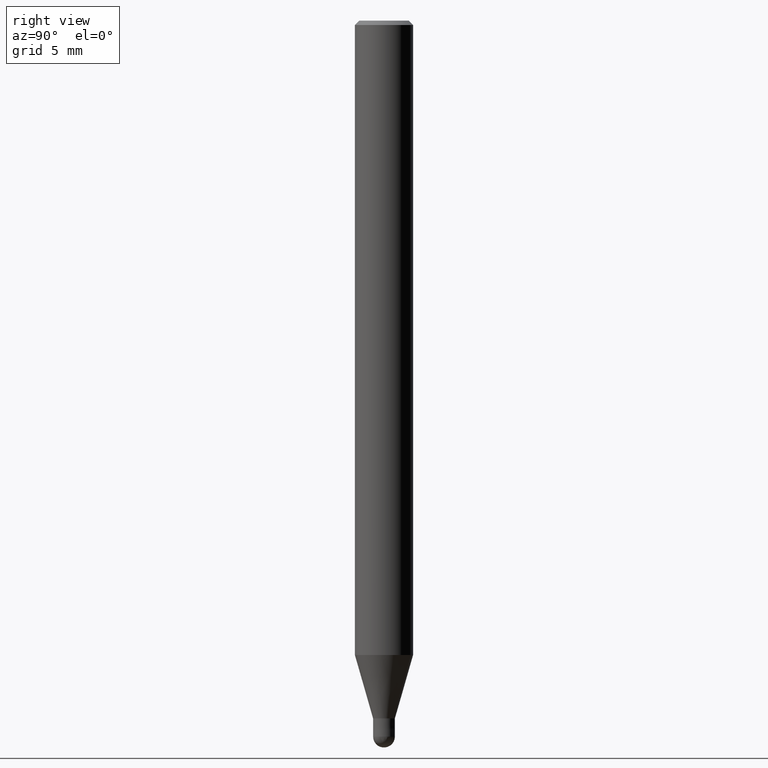
[diagram: clean part render]
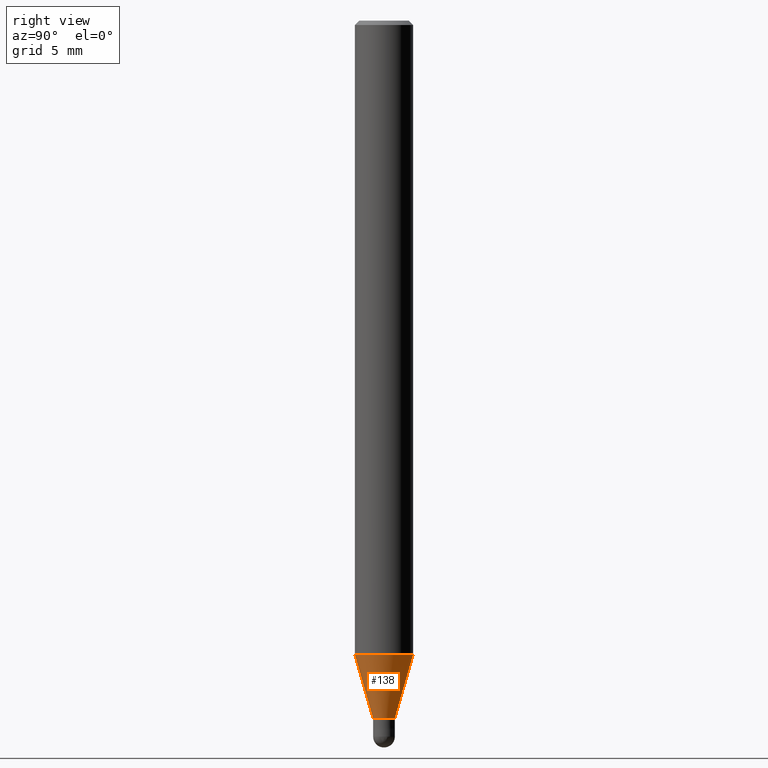
[diagram: same view with one face highlighted and labeled with its STEP entity id]
A machine part, right view. The second image highlights one B-rep face of the part: STEP entity #138.
In plain terms, the highlighted conical surface has half-angle 16.001 deg.
Its self-contained STEP definition (entity closure, byte-faithful):
#94=VERTEX_POINT('',#222);
#100=VERTEX_POINT('',#229);
#112=EDGE_CURVE('',#100,#170,#241,.T.);
#120=EDGE_CURVE('',#100,#186,#249,.T.);
#138=ADVANCED_FACE('',(#271),#272,.T.);
#160=EDGE_CURVE('',#170,#94,#298,.T.);
#170=VERTEX_POINT('',#309);
#186=VERTEX_POINT('',#326);
#190=EDGE_CURVE('',#94,#186,#330,.T.);
#222=CARTESIAN_POINT('',(9.18393535049092E-017,-0.74995,-48.0));
#229=CARTESIAN_POINT('',(0.0,1.99995,-43.641));
#241=LINE('',#382,#383);
#249=CIRCLE('',#394,1.99995);
#271=FACE_OUTER_BOUND('',#422,.T.);
#272=CONICAL_SURFACE('',#423,1.37495,0.279268973819818);
#298=CIRCLE('',#452,0.74995);
#309=CARTESIAN_POINT('',(0.0,0.74995,-48.0));
#326=CARTESIAN_POINT('',(2.44915147732706E-016,-1.99995,-43.641));
#330=LINE('',#490,#491);
#382=CARTESIAN_POINT('',(-1.68377250618808E-016,1.37495,-45.8205));
#383=VECTOR('',#533,1.0);
#394=AXIS2_PLACEMENT_3D('',#539,#540,#541);
#422=EDGE_LOOP('',(#575,#576,#577,#578));
#423=AXIS2_PLACEMENT_3D('',#579,#580,#581);
#452=AXIS2_PLACEMENT_3D('',#622,#623,#624);
#490=CARTESIAN_POINT('',(1.68377250618808E-016,-1.37495,-45.8205));
#491=VECTOR('',#649,1.0);
#533=DIRECTION('',(3.375664374138E-017,-0.27565301809855,-0.961257204713265));
#539=CARTESIAN_POINT('',(0.0,0.0,-43.641));
#540=DIRECTION('',(0.0,0.0,-1.0));
#541=DIRECTION('',(0.0,1.0,0.0));
#575=ORIENTED_EDGE('',*,*,#112,.F.);
#576=ORIENTED_EDGE('',*,*,#120,.T.);
#577=ORIENTED_EDGE('',*,*,#190,.F.);
#578=ORIENTED_EDGE('',*,*,#160,.F.);
#579=CARTESIAN_POINT('',(0.0,0.0,-45.8205));
#580=DIRECTION('',(-0.0,-0.0,1.0));
#581=DIRECTION('',(0.0,1.0,0.0));
#622=CARTESIAN_POINT('',(0.0,0.0,-48.0));
#623=DIRECTION('',(0.0,0.0,-1.0));
#624=DIRECTION('',(0.0,1.0,0.0));
#649=DIRECTION('',(3.375664374138E-017,-0.27565301809855,0.961257204713265));